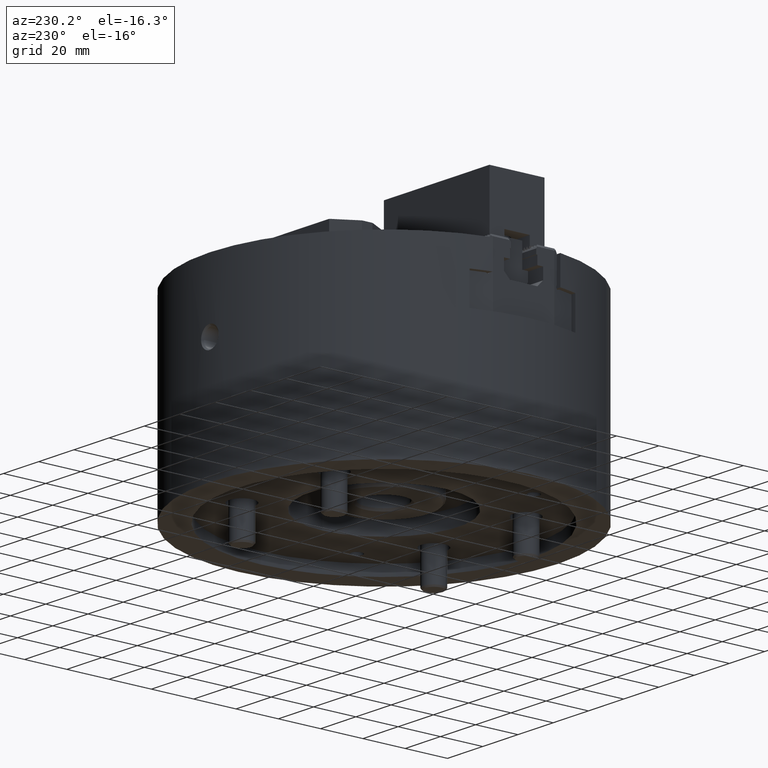
[diagram: clean part render]
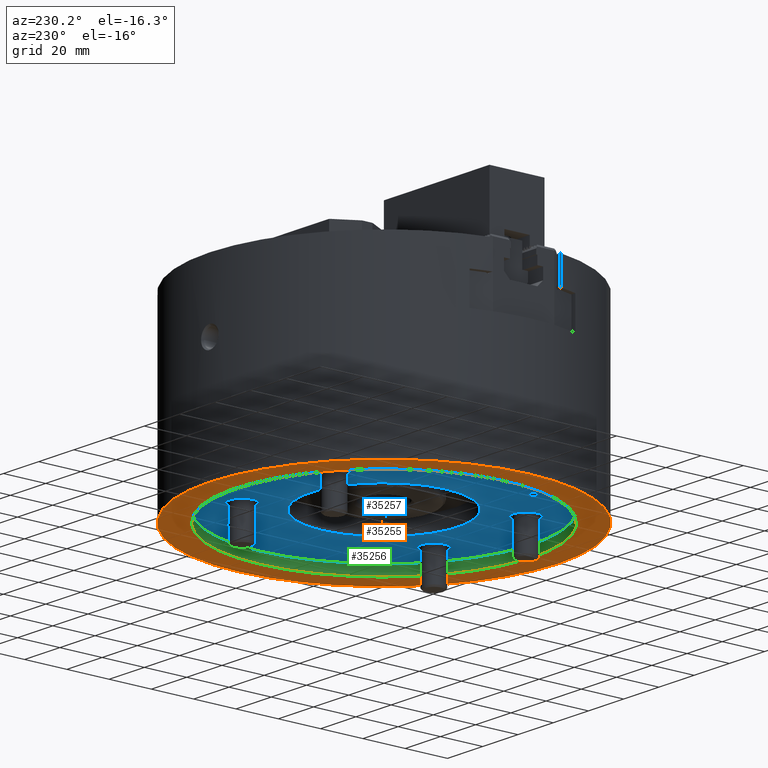
[diagram: same view with three faces highlighted in distinct colors, each labeled with its STEP entity id]
A machine part, auxiliary view with three faces highlighted in distinct colors.
Their STEP definitions:

[orange] entity #35255 — the highlighted planar face has unit normal (-0, 0, 1).
#1006=CIRCLE('',#36993,70.);
#1007=CIRCLE('',#36994,82.5);
#2479=ORIENTED_EDGE('',*,*,#12875,.T.);
#2480=ORIENTED_EDGE('',*,*,#12876,.F.);
#12875=EDGE_CURVE('',#18086,#18086,#1006,.T.);
#12876=EDGE_CURVE('',#18087,#18087,#1007,.T.);
#18086=VERTEX_POINT('',#52358);
#18087=VERTEX_POINT('',#52360);
#30184=EDGE_LOOP('',(#2479));
#30185=EDGE_LOOP('',(#2480));
#32144=FACE_BOUND('',#30184,.T.);
#32145=FACE_BOUND('',#30185,.T.);
#33989=PLANE('',#36992);
#35255=ADVANCED_FACE('',(#32144,#32145),#33989,.F.);
#36992=AXIS2_PLACEMENT_3D('',#52356,#40136,#40137);
#36993=AXIS2_PLACEMENT_3D('',#52357,#40138,#40139);
#36994=AXIS2_PLACEMENT_3D('',#52359,#40140,#40141);
#40136=DIRECTION('',(-2.34290668463255E-15,0.,1.));
#40137=DIRECTION('',(1.,0.,2.34534613952064E-15));
#40138=DIRECTION('',(-2.34290668463255E-15,0.,1.));
#40139=DIRECTION('',(1.,0.,2.37904933848248E-15));
#40140=DIRECTION('',(-2.34290668463255E-15,0.,1.));
#40141=DIRECTION('',(1.,0.,2.35501853708366E-15));
#52356=CARTESIAN_POINT('',(-69.9999999999998,0.,-87.0000000000001));
#52357=CARTESIAN_POINT('',(2.03832881563032E-13,0.,-87.));
#52358=CARTESIAN_POINT('',(70.0000000000002,0.,-86.9999999999998));
#52359=CARTESIAN_POINT('',(2.03832881563032E-13,0.,-87.));
#52360=CARTESIAN_POINT('',(82.5000000000002,0.,-86.9999999999998));

[blue] entity #35257 — the highlighted planar face has unit normal (-0, 0, 1).
#974=CIRCLE('',#36935,2.6);
#976=CIRCLE('',#36939,2.6);
#978=CIRCLE('',#36943,2.6);
#980=CIRCLE('',#36947,2.6);
#985=CIRCLE('',#36956,6.);
#990=CIRCLE('',#36964,6.);
#995=CIRCLE('',#36972,6.);
#1000=CIRCLE('',#36980,6.);
#1008=CIRCLE('',#36996,70.);
#1009=CIRCLE('',#36998,35.);
#2483=ORIENTED_EDGE('',*,*,#12878,.T.);
#2484=ORIENTED_EDGE('',*,*,#12877,.F.);
#2485=ORIENTED_EDGE('',*,*,#12847,.T.);
#2486=ORIENTED_EDGE('',*,*,#12842,.T.);
#2487=ORIENTED_EDGE('',*,*,#12837,.T.);
#2488=ORIENTED_EDGE('',*,*,#12832,.T.);
#2489=ORIENTED_EDGE('',*,*,#12827,.T.);
#2490=ORIENTED_EDGE('',*,*,#12825,.T.);
#2491=ORIENTED_EDGE('',*,*,#12823,.T.);
#2492=ORIENTED_EDGE('',*,*,#12821,.T.);
#12821=EDGE_CURVE('',#18034,#18034,#974,.T.);
#12823=EDGE_CURVE('',#18037,#18037,#976,.T.);
#12825=EDGE_CURVE('',#18040,#18040,#978,.T.);
#12827=EDGE_CURVE('',#18043,#18043,#980,.T.);
#12832=EDGE_CURVE('',#18049,#18049,#985,.T.);
#12837=EDGE_CURVE('',#18054,#18054,#990,.T.);
#12842=EDGE_CURVE('',#18059,#18059,#995,.T.);
#12847=EDGE_CURVE('',#18064,#18064,#1000,.T.);
#12877=EDGE_CURVE('',#18088,#18088,#1008,.T.);
#12878=EDGE_CURVE('',#18089,#18089,#1009,.T.);
#18034=VERTEX_POINT('',#52226);
#18037=VERTEX_POINT('',#52233);
#18040=VERTEX_POINT('',#52240);
#18043=VERTEX_POINT('',#52247);
#18049=VERTEX_POINT('',#52262);
#18054=VERTEX_POINT('',#52275);
#18059=VERTEX_POINT('',#52288);
#18064=VERTEX_POINT('',#52301);
#18088=VERTEX_POINT('',#52363);
#18089=VERTEX_POINT('',#52366);
#30188=EDGE_LOOP('',(#2483));
#30189=EDGE_LOOP('',(#2484));
#30190=EDGE_LOOP('',(#2485));
#30191=EDGE_LOOP('',(#2486));
#30192=EDGE_LOOP('',(#2487));
#30193=EDGE_LOOP('',(#2488));
#30194=EDGE_LOOP('',(#2489));
#30195=EDGE_LOOP('',(#2490));
#30196=EDGE_LOOP('',(#2491));
#30197=EDGE_LOOP('',(#2492));
#32148=FACE_BOUND('',#30188,.T.);
#32149=FACE_BOUND('',#30189,.T.);
#32150=FACE_BOUND('',#30190,.T.);
#32151=FACE_BOUND('',#30191,.T.);
#32152=FACE_BOUND('',#30192,.T.);
#32153=FACE_BOUND('',#30193,.T.);
#32154=FACE_BOUND('',#30194,.T.);
#32155=FACE_BOUND('',#30195,.T.);
#32156=FACE_BOUND('',#30196,.T.);
#32157=FACE_BOUND('',#30197,.T.);
#33990=PLANE('',#36997);
#35257=ADVANCED_FACE('',(#32148,#32149,#32150,#32151,#32152,#32153,#32154,
#32155,#32156,#32157),#33990,.F.);
#36935=AXIS2_PLACEMENT_3D('',#52225,#40000,#40001);
#36939=AXIS2_PLACEMENT_3D('',#52232,#40008,#40009);
#36943=AXIS2_PLACEMENT_3D('',#52239,#40016,#40017);
#36947=AXIS2_PLACEMENT_3D('',#52246,#40024,#40025);
#36956=AXIS2_PLACEMENT_3D('',#52261,#40042,#40043);
#36964=AXIS2_PLACEMENT_3D('',#52274,#40058,#40059);
#36972=AXIS2_PLACEMENT_3D('',#52287,#40074,#40075);
#36980=AXIS2_PLACEMENT_3D('',#52300,#40090,#40091);
#36996=AXIS2_PLACEMENT_3D('',#52362,#40144,#40145);
#36997=AXIS2_PLACEMENT_3D('',#52364,#40146,#40147);
#36998=AXIS2_PLACEMENT_3D('',#52365,#40148,#40149);
#40000=DIRECTION('',(-2.34290668463255E-15,0.,1.));
#40001=DIRECTION('',(-1.,0.,0.));
#40008=DIRECTION('',(-2.34290668463255E-15,0.,1.));
#40009=DIRECTION('',(-1.,0.,0.));
#40016=DIRECTION('',(-2.34290668463255E-15,0.,1.));
#40017=DIRECTION('',(1.,0.,0.));
#40024=DIRECTION('',(-2.34290668463255E-15,0.,1.));
#40025=DIRECTION('',(1.,0.,0.));
#40042=DIRECTION('',(-2.34290668463255E-15,0.,1.));
#40043=DIRECTION('',(1.,0.,2.31296463463574E-15));
#40058=DIRECTION('',(-2.34290668463255E-15,0.,1.));
#40059=DIRECTION('',(1.,0.,2.31296463463574E-15));
#40074=DIRECTION('',(-2.34290668463255E-15,0.,1.));
#40075=DIRECTION('',(1.,0.,2.31296463463574E-15));
#40090=DIRECTION('',(-2.34290668463255E-15,0.,1.));
#40091=DIRECTION('',(1.,0.,2.31296463463574E-15));
#40144=DIRECTION('',(-2.34290668463255E-15,0.,1.));
#40145=DIRECTION('',(1.,0.,2.37904933848248E-15));
#40146=DIRECTION('',(-2.34290668463255E-15,0.,1.));
#40147=DIRECTION('',(1.,0.,2.34534613952064E-15));
#40148=DIRECTION('',(-2.34290668463255E-15,0.,1.));
#40149=DIRECTION('',(1.,0.,2.37904933848248E-15));
#52225=CARTESIAN_POINT('',(-50.229473419497,29.,-81.9999999999993));
#52226=CARTESIAN_POINT('',(-52.829473419497,29.,-81.9999999999993));
#52232=CARTESIAN_POINT('',(-50.229473419497,-29.,-81.9999999999993));
#52233=CARTESIAN_POINT('',(-52.829473419497,-29.,-81.9999999999993));
#52239=CARTESIAN_POINT('',(50.2294734194974,-29.,-81.9999999999991));
#52240=CARTESIAN_POINT('',(52.8294734194974,-29.,-81.9999999999991));
#52246=CARTESIAN_POINT('',(50.2294734194974,29.,-81.9999999999991));
#52247=CARTESIAN_POINT('',(52.8294734194974,29.,-81.9999999999991));
#52261=CARTESIAN_POINT('',(26.2000000000002,45.3797311583046,-81.9999999999999));
#52262=CARTESIAN_POINT('',(32.2000000000002,45.3797311583046,-81.9999999999999));
#52274=CARTESIAN_POINT('',(-26.1999999999998,45.3797311583046,-82.0000000000001));
#52275=CARTESIAN_POINT('',(-20.1999999999998,45.3797311583046,-82.0000000000001));
#52287=CARTESIAN_POINT('',(-26.1999999999998,-45.3797311583046,-82.0000000000001));
#52288=CARTESIAN_POINT('',(-20.1999999999998,-45.3797311583046,-82.0000000000001));
#52300=CARTESIAN_POINT('',(26.2000000000002,-45.3797311583046,-81.9999999999999));
#52301=CARTESIAN_POINT('',(32.2000000000002,-45.3797311583046,-81.9999999999999));
#52362=CARTESIAN_POINT('',(1.92118348139869E-13,0.,-82.));
#52363=CARTESIAN_POINT('',(70.0000000000002,0.,-81.9999999999998));
#52364=CARTESIAN_POINT('',(-34.9999999999998,0.,-82.0000000000001));
#52365=CARTESIAN_POINT('',(1.92118348139869E-13,0.,-82.));
#52366=CARTESIAN_POINT('',(35.0000000000002,0.,-81.9999999999999));

[green] entity #35256 — the highlighted cylindrical surface (bore or boss wall) has radius 70 mm, axis along (-0, 0, 1).
#608=CYLINDRICAL_SURFACE('',#36995,70.);
#1006=CIRCLE('',#36993,70.);
#1008=CIRCLE('',#36996,70.);
#2481=ORIENTED_EDGE('',*,*,#12877,.T.);
#2482=ORIENTED_EDGE('',*,*,#12875,.F.);
#12875=EDGE_CURVE('',#18086,#18086,#1006,.T.);
#12877=EDGE_CURVE('',#18088,#18088,#1008,.T.);
#18086=VERTEX_POINT('',#52358);
#18088=VERTEX_POINT('',#52363);
#30186=EDGE_LOOP('',(#2481));
#30187=EDGE_LOOP('',(#2482));
#32146=FACE_BOUND('',#30186,.T.);
#32147=FACE_BOUND('',#30187,.T.);
#35256=ADVANCED_FACE('',(#32146,#32147),#608,.F.);
#36993=AXIS2_PLACEMENT_3D('',#52357,#40138,#40139);
#36995=AXIS2_PLACEMENT_3D('',#52361,#40142,#40143);
#36996=AXIS2_PLACEMENT_3D('',#52362,#40144,#40145);
#40138=DIRECTION('',(-2.34290668463255E-15,0.,1.));
#40139=DIRECTION('',(1.,0.,2.37904933848248E-15));
#40142=DIRECTION('',(-2.34290668463255E-15,0.,1.));
#40143=DIRECTION('',(1.,0.,2.34290668463255E-15));
#40144=DIRECTION('',(-2.34290668463255E-15,0.,1.));
#40145=DIRECTION('',(1.,0.,2.37904933848248E-15));
#52357=CARTESIAN_POINT('',(2.03832881563032E-13,0.,-87.));
#52358=CARTESIAN_POINT('',(70.0000000000002,0.,-86.9999999999998));
#52361=CARTESIAN_POINT('',(0.,0.,0.));
#52362=CARTESIAN_POINT('',(1.92118348139869E-13,0.,-82.));
#52363=CARTESIAN_POINT('',(70.0000000000002,0.,-81.9999999999998));